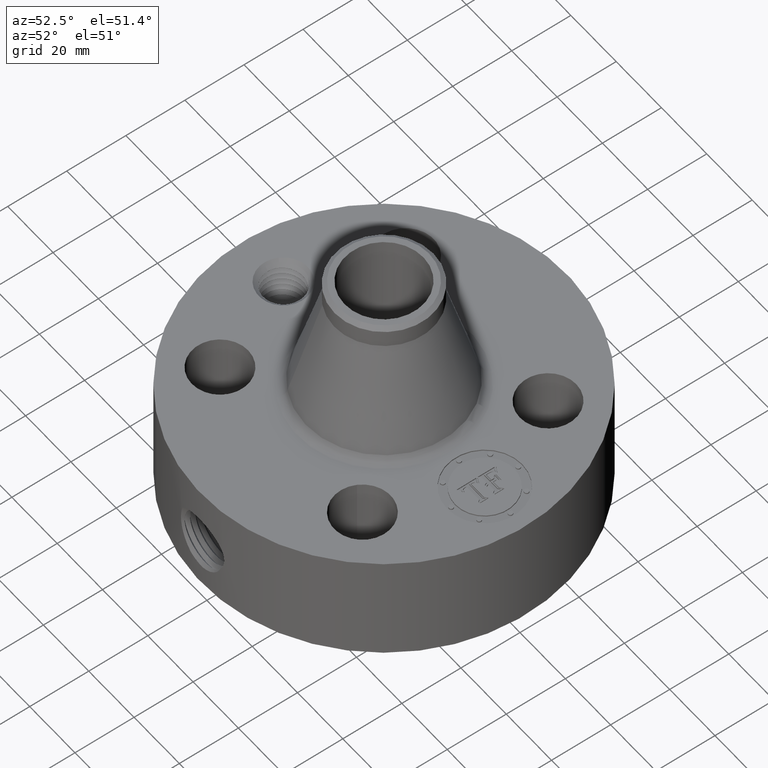
[diagram: clean part render]
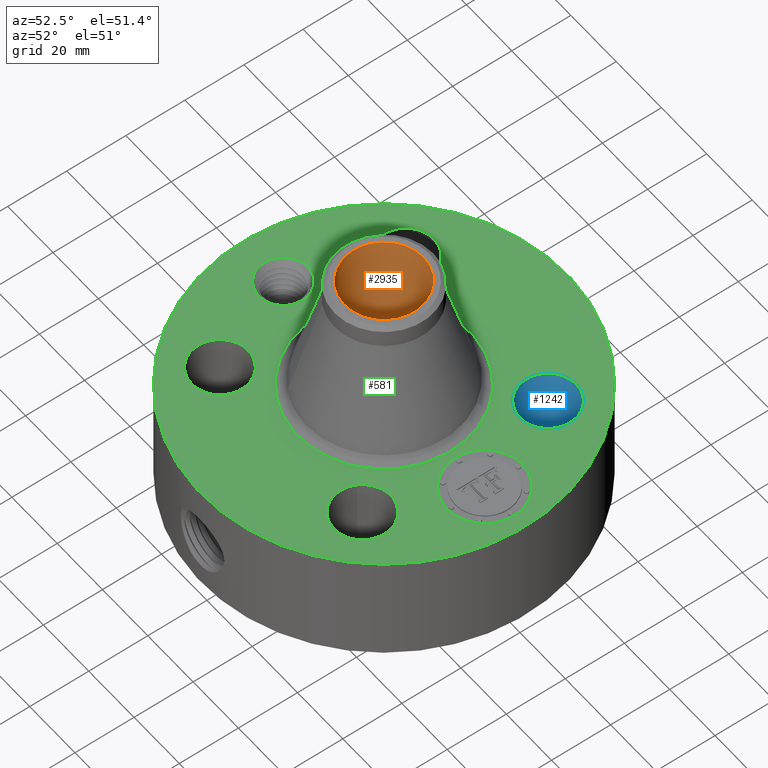
[diagram: same view with three faces highlighted in distinct colors, each labeled with its STEP entity id]
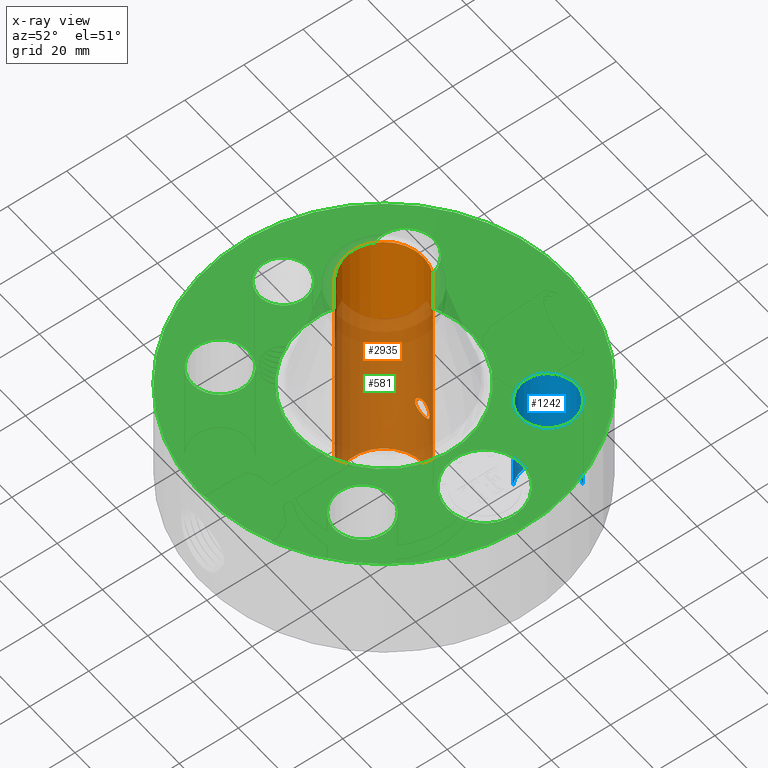
[diagram: x-ray of the same camera — body ghosted, the three highlighted faces saturated]
A machine part, auxiliary view with three faces highlighted in distinct colors.
The next image is the same camera in x-ray (body ghosted, the three faces saturated) — at least one of them is partly hidden behind the body in this view.
Their STEP definitions:

[orange] entity #2935 — the highlighted cylindrical surface (partial cylindrical patch) has radius 13.3223 mm, axis along (0, 0, -1).
#2092=AXIS2_PLACEMENT_3D('Circle Axis2P3D',#2090,#2091,$) ;
#2812=AXIS2_PLACEMENT_3D('Cylinder Axis2P3D',#2809,#2810,#2811) ;
#2884=AXIS2_PLACEMENT_3D('Circle Axis2P3D',#2882,#2883,$) ;
#2085=CARTESIAN_POINT('Vertex',(0.251458694999,0.460292053713,-2.79741234551E-015)) ;
#2087=CARTESIAN_POINT('Vertex',(-0.251458694999,-0.460292053713,-2.79741234551E-015)) ;
#2090=CARTESIAN_POINT('Axis2P3D Location',(0.,0.,0.)) ;
#2809=CARTESIAN_POINT('Axis2P3D Location',(0.,0.,1.75000000001)) ;
#2818=CARTESIAN_POINT('Vertex',(0.251458694999,0.460292053713,3.50000000001)) ;
#2820=CARTESIAN_POINT('Vertex',(-0.251458694999,-0.460292053713,3.50000000001)) ;
#2823=CARTESIAN_POINT('Line Origine',(0.251458694999,0.460292053713,1.75000000001)) ;
#2828=CARTESIAN_POINT('Line Origine',(-0.251458694999,-0.460292053713,1.75000000001)) ;
#2882=CARTESIAN_POINT('Axis2P3D Location',(0.,0.,3.50000000001)) ;
#2894=CARTESIAN_POINT('Control Point',(0.109697820237,0.512900222497,0.99992819233)) ;
#2895=CARTESIAN_POINT('Control Point',(0.103067995137,0.514318192952,1.01206400577)) ;
#2896=CARTESIAN_POINT('Control Point',(0.0947719695394,0.5159805034,1.02326099615)) ;
#2897=CARTESIAN_POINT('Control Point',(0.0849803702631,0.51773919703,1.03323331604)) ;
#2898=CARTESIAN_POINT('Control Point',(0.0538199881037,0.522434964879,1.05721526035)) ;
#2899=CARTESIAN_POINT('Control Point',(0.0149493305901,0.525251537099,1.06806916629)) ;
#2900=CARTESIAN_POINT('Control Point',(-0.0116326804184,0.525346375616,1.06841720931)) ;
#2901=CARTESIAN_POINT('Control Point',(-0.0508447925136,0.522756079785,1.05854858797)) ;
#2902=CARTESIAN_POINT('Control Point',(-0.0826523564103,0.518124437442,1.03531611328)) ;
#2903=CARTESIAN_POINT('Control Point',(-0.0927261783309,0.516359982355,1.02554648395)) ;
#2904=CARTESIAN_POINT('Control Point',(-0.117112916641,0.511563161852,0.994230956015)) ;
#2905=CARTESIAN_POINT('Control Point',(-0.128164416092,0.508593381511,0.954995906299)) ;
#2906=CARTESIAN_POINT('Control Point',(-0.128487390483,0.508500379865,0.928038397611)) ;
#2907=CARTESIAN_POINT('Control Point',(-0.121927405503,0.510284589305,0.902457913349)) ;
#2908=CARTESIAN_POINT('Control Point',(-0.109697820237,0.512900222497,0.880071807678)) ;
#2909=CARTESIAN_POINT('Vertex',(0.109697820237,0.512900222497,0.99992819233)) ;
#2911=CARTESIAN_POINT('Vertex',(-0.109697820237,0.512900222497,0.880071807678)) ;
#2915=CARTESIAN_POINT('Control Point',(0.109697820237,0.512900222497,0.99992819233)) ;
#2916=CARTESIAN_POINT('Control Point',(0.11623428064,0.51150222065,0.987963281817)) ;
#2917=CARTESIAN_POINT('Control Point',(0.121151116862,0.510341730082,0.975085839107)) ;
#2918=CARTESIAN_POINT('Control Point',(0.124277294771,0.509563203993,0.961579940317)) ;
#2919=CARTESIAN_POINT('Control Point',(0.127559697454,0.508761572469,0.92479114426)) ;
#2920=CARTESIAN_POINT('Control Point',(0.117478559259,0.511227660569,0.888670959165)) ;
#2921=CARTESIAN_POINT('Control Point',(0.106063810001,0.513973823365,0.868078037783)) ;
#2922=CARTESIAN_POINT('Control Point',(0.0747703859207,0.520006013883,0.833400530519)) ;
#2923=CARTESIAN_POINT('Control Point',(0.0313370516026,0.524299170456,0.815652108619)) ;
#2924=CARTESIAN_POINT('Control Point',(0.00765580743141,0.52527137436,0.811958680857)) ;
#2925=CARTESIAN_POINT('Control Point',(-0.0355699630458,0.524258134677,0.815523495339)) ;
#2926=CARTESIAN_POINT('Control Point',(-0.0731881901039,0.519775727891,0.835943268941)) ;
#2927=CARTESIAN_POINT('Control Point',(-0.0882205331279,0.517280293423,0.848357746272)) ;
#2928=CARTESIAN_POINT('Control Point',(-0.10054648706,0.51485748681,0.86332040466)) ;
#2929=CARTESIAN_POINT('Control Point',(-0.109697820237,0.512900222497,0.880071807678)) ;
#2091=DIRECTION('Axis2P3D Direction',(0.,0.,-0.0393700787402)) ;
#2810=DIRECTION('Axis2P3D Direction',(0.,0.,-0.0393700787402)) ;
#2811=DIRECTION('Axis2P3D XDirection',(-0.0188750212049,-0.0345504945626,0.)) ;
#2824=DIRECTION('Vector Direction',(0.,0.,-0.0393700787402)) ;
#2829=DIRECTION('Vector Direction',(0.,0.,-0.0393700787402)) ;
#2883=DIRECTION('Axis2P3D Direction',(0.,0.,-0.0393700787402)) ;
#2825=VECTOR('Line Direction',#2824,0.0393700787402) ;
#2830=VECTOR('Line Direction',#2829,0.0393700787402) ;
#2888=ORIENTED_EDGE('',*,*,#2886,.F.) ;
#2889=ORIENTED_EDGE('',*,*,#2832,.T.) ;
#2890=ORIENTED_EDGE('',*,*,#2094,.T.) ;
#2891=ORIENTED_EDGE('',*,*,#2827,.F.) ;
#2932=ORIENTED_EDGE('',*,*,#2913,.F.) ;
#2933=ORIENTED_EDGE('',*,*,#2930,.T.) ;
#2934=FACE_BOUND('',#2931,.T.) ;
#2935=ADVANCED_FACE('PartBody',(#2892,#2934),#2813,.F.) ;
#2893=B_SPLINE_CURVE_WITH_KNOTS('',5,(#2894,#2895,#2896,#2897,#2898,#2899,#2900,#2901,#2902,#2903,#2904,#2905,#2906,#2907,#2908),.UNSPECIFIED.,.F.,.U.,(6,3,3,3,6),(0.,2.49672561363,7.04499234158,9.55164643787,14.1571855461),.UNSPECIFIED.) ;
#2914=B_SPLINE_CURVE_WITH_KNOTS('',5,(#2915,#2916,#2917,#2918,#2919,#2920,#2921,#2922,#2923,#2924,#2925,#2926,#2927,#2928,#2929),.UNSPECIFIED.,.F.,.U.,(6,3,3,3,6),(0.,2.46156540583,6.57020743714,10.7112749778,14.1575752343),.UNSPECIFIED.) ;
#2093=CIRCLE('generated circle',#2092,0.524500000002) ;
#2885=CIRCLE('generated circle',#2884,0.524500000002) ;
#2813=CYLINDRICAL_SURFACE('generated cylinder',#2812,0.524500000002) ;
#2094=EDGE_CURVE('',#2088,#2086,#2093,.T.) ;
#2827=EDGE_CURVE('',#2819,#2086,#2826,.T.) ;
#2832=EDGE_CURVE('',#2821,#2088,#2831,.T.) ;
#2886=EDGE_CURVE('',#2821,#2819,#2885,.T.) ;
#2913=EDGE_CURVE('',#2910,#2912,#2893,.T.) ;
#2930=EDGE_CURVE('',#2910,#2912,#2914,.T.) ;
#2887=EDGE_LOOP('',(#2888,#2889,#2890,#2891)) ;
#2931=EDGE_LOOP('',(#2932,#2933)) ;
#2892=FACE_OUTER_BOUND('',#2887,.T.) ;
#2826=LINE('Line',#2823,#2825) ;
#2831=LINE('Line',#2828,#2830) ;
#2086=VERTEX_POINT('',#2085) ;
#2088=VERTEX_POINT('',#2087) ;
#2819=VERTEX_POINT('',#2818) ;
#2821=VERTEX_POINT('',#2820) ;
#2910=VERTEX_POINT('',#2909) ;
#2912=VERTEX_POINT('',#2911) ;

[blue] entity #1242 — the highlighted cylindrical surface (edge-blend (fillet) strip) has radius 9.525 mm, axis along (0, 0, -1).
#299=AXIS2_PLACEMENT_3D('Circle Axis2P3D',#297,#298,$) ;
#556=AXIS2_PLACEMENT_3D('Circle Axis2P3D',#554,#555,$) ;
#1224=AXIS2_PLACEMENT_3D('Cylinder Axis2P3D',#1221,#1222,#1223) ;
#297=CARTESIAN_POINT('Axis2P3D Location',(1.23743686708,1.23743686708,0.250000000001)) ;
#301=CARTESIAN_POINT('Vertex',(1.0576522901,0.908343406371,0.250000000001)) ;
#303=CARTESIAN_POINT('Vertex',(1.41722144406,1.56653032779,0.250000000001)) ;
#549=CARTESIAN_POINT('Vertex',(1.41722144406,1.56653032779,1.75000000001)) ;
#551=CARTESIAN_POINT('Vertex',(1.0576522901,0.908343406371,1.75000000001)) ;
#554=CARTESIAN_POINT('Axis2P3D Location',(1.23743686708,1.23743686708,1.75000000001)) ;
#1221=CARTESIAN_POINT('Axis2P3D Location',(1.23743686708,1.23743686708,1.74606299213)) ;
#1226=CARTESIAN_POINT('Line Origine',(1.0576522901,0.908343406371,1.)) ;
#1231=CARTESIAN_POINT('Line Origine',(1.41722144406,1.56653032779,1.)) ;
#298=DIRECTION('Axis2P3D Direction',(0.,0.,-0.0393700787402)) ;
#555=DIRECTION('Axis2P3D Direction',(0.,0.,-0.0393700787402)) ;
#1222=DIRECTION('Axis2P3D Direction',(0.,0.,-0.0393700787402)) ;
#1223=DIRECTION('Axis2P3D XDirection',(0.0188750212049,0.0345504945626,0.)) ;
#1227=DIRECTION('Vector Direction',(0.,0.,-0.0393700787402)) ;
#1232=DIRECTION('Vector Direction',(0.,0.,-0.0393700787402)) ;
#1228=VECTOR('Line Direction',#1227,0.0393700787402) ;
#1233=VECTOR('Line Direction',#1232,0.0393700787402) ;
#1237=ORIENTED_EDGE('',*,*,#1230,.F.) ;
#1238=ORIENTED_EDGE('',*,*,#305,.T.) ;
#1239=ORIENTED_EDGE('',*,*,#1235,.T.) ;
#1240=ORIENTED_EDGE('',*,*,#558,.F.) ;
#1242=ADVANCED_FACE('PartBody',(#1241),#1225,.F.) ;
#300=CIRCLE('generated circle',#299,0.375000000001) ;
#557=CIRCLE('generated circle',#556,0.375000000001) ;
#1225=CYLINDRICAL_SURFACE('generated cylinder',#1224,0.375000000001) ;
#305=EDGE_CURVE('',#302,#304,#300,.T.) ;
#558=EDGE_CURVE('',#552,#550,#557,.T.) ;
#1230=EDGE_CURVE('',#302,#552,#1229,.F.) ;
#1235=EDGE_CURVE('',#304,#550,#1234,.F.) ;
#1236=EDGE_LOOP('',(#1237,#1238,#1239,#1240)) ;
#1241=FACE_OUTER_BOUND('',#1236,.T.) ;
#1229=LINE('Line',#1226,#1228) ;
#1234=LINE('Line',#1231,#1233) ;
#302=VERTEX_POINT('',#301) ;
#304=VERTEX_POINT('',#303) ;
#550=VERTEX_POINT('',#549) ;
#552=VERTEX_POINT('',#551) ;

[green] entity #581 — the highlighted planar face has unit normal (0, 0, -1).
#58=AXIS2_PLACEMENT_3D('Circle Axis2P3D',#56,#57,$) ;
#318=AXIS2_PLACEMENT_3D('Circle Axis2P3D',#316,#317,$) ;
#449=AXIS2_PLACEMENT_3D('Plane Axis2P3D',#446,#447,#448) ;
#457=AXIS2_PLACEMENT_3D('Circle Axis2P3D',#455,#456,$) ;
#466=AXIS2_PLACEMENT_3D('Circle Axis2P3D',#464,#465,$) ;
#475=AXIS2_PLACEMENT_3D('Circle Axis2P3D',#473,#474,$) ;
#484=AXIS2_PLACEMENT_3D('Circle Axis2P3D',#482,#483,$) ;
#493=AXIS2_PLACEMENT_3D('Circle Axis2P3D',#491,#492,$) ;
#502=AXIS2_PLACEMENT_3D('Circle Axis2P3D',#500,#501,$) ;
#511=AXIS2_PLACEMENT_3D('Circle Axis2P3D',#509,#510,$) ;
#520=AXIS2_PLACEMENT_3D('Circle Axis2P3D',#518,#519,$) ;
#529=AXIS2_PLACEMENT_3D('Circle Axis2P3D',#527,#528,$) ;
#538=AXIS2_PLACEMENT_3D('Circle Axis2P3D',#536,#537,$) ;
#547=AXIS2_PLACEMENT_3D('Circle Axis2P3D',#545,#546,$) ;
#556=AXIS2_PLACEMENT_3D('Circle Axis2P3D',#554,#555,$) ;
#565=AXIS2_PLACEMENT_3D('Circle Axis2P3D',#563,#564,$) ;
#574=AXIS2_PLACEMENT_3D('Circle Axis2P3D',#572,#573,$) ;
#53=CARTESIAN_POINT('Vertex',(-1.1697983142,-2.14130145102,1.75000000001)) ;
#56=CARTESIAN_POINT('Axis2P3D Location',(0.,0.,1.75000000001)) ;
#60=CARTESIAN_POINT('Vertex',(1.1697983142,2.14130145102,1.75000000001)) ;
#316=CARTESIAN_POINT('Axis2P3D Location',(0.,0.,1.75000000001)) ;
#446=CARTESIAN_POINT('Axis2P3D Location',(0.,2.44000000001,1.75000000001)) ;
#455=CARTESIAN_POINT('Axis2P3D Location',(-1.75000000001,5.59482469102E-016,1.75000000001)) ;
#459=CARTESIAN_POINT('Vertex',(-2.03578476129,0.156124926647,1.75000000001)) ;
#461=CARTESIAN_POINT('Vertex',(-1.46421523873,-0.156124926647,1.75000000001)) ;
#464=CARTESIAN_POINT('Axis2P3D Location',(-1.75000000001,5.59482469102E-016,1.75000000001)) ;
#473=CARTESIAN_POINT('Axis2P3D Location',(1.23743686708,-1.23743686708,1.75000000001)) ;
#477=CARTESIAN_POINT('Vertex',(0.908343406371,-1.0576522901,1.75000000001)) ;
#479=CARTESIAN_POINT('Vertex',(1.56653032779,-1.41722144406,1.75000000001)) ;
#482=CARTESIAN_POINT('Axis2P3D Location',(1.23743686708,-1.23743686708,1.75000000001)) ;
#491=CARTESIAN_POINT('Axis2P3D Location',(0.,0.,1.75000000001)) ;
#495=CARTESIAN_POINT('Vertex',(-0.552161062108,-1.0107240446,1.75000000001)) ;
#497=CARTESIAN_POINT('Vertex',(0.552161062108,1.0107240446,1.75000000001)) ;
#500=CARTESIAN_POINT('Axis2P3D Location',(0.,0.,1.75000000001)) ;
#509=CARTESIAN_POINT('Axis2P3D Location',(-1.23743686708,-1.23743686708,1.75000000001)) ;
#513=CARTESIAN_POINT('Vertex',(-1.41722144406,-1.56653032779,1.75000000001)) ;
#515=CARTESIAN_POINT('Vertex',(-1.0576522901,-0.908343406371,1.75000000001)) ;
#518=CARTESIAN_POINT('Axis2P3D Location',(-1.23743686708,-1.23743686708,1.75000000001)) ;
#527=CARTESIAN_POINT('Axis2P3D Location',(-1.23743686708,1.23743686708,1.75000000001)) ;
#531=CARTESIAN_POINT('Vertex',(-1.56653032779,1.41722144406,1.75000000001)) ;
#533=CARTESIAN_POINT('Vertex',(-0.908343406371,1.0576522901,1.75000000001)) ;
#536=CARTESIAN_POINT('Axis2P3D Location',(-1.23743686708,1.23743686708,1.75000000001)) ;
#545=CARTESIAN_POINT('Axis2P3D Location',(1.23743686708,1.23743686708,1.75000000001)) ;
#549=CARTESIAN_POINT('Vertex',(1.41722144406,1.56653032779,1.75000000001)) ;
#551=CARTESIAN_POINT('Vertex',(1.0576522901,0.908343406371,1.75000000001)) ;
#554=CARTESIAN_POINT('Axis2P3D Location',(1.23743686708,1.23743686708,1.75000000001)) ;
#563=CARTESIAN_POINT('Axis2P3D Location',(1.75000000001,-8.67197827109E-015,1.75000000001)) ;
#567=CARTESIAN_POINT('Vertex',(1.75000000001,0.499999995002,1.75000000001)) ;
#569=CARTESIAN_POINT('Vertex',(1.75000000001,-0.499999995002,1.75000000001)) ;
#572=CARTESIAN_POINT('Axis2P3D Location',(1.75000000001,-8.95171950564E-015,1.75000000001)) ;
#57=DIRECTION('Axis2P3D Direction',(0.,0.,-0.0393700787402)) ;
#317=DIRECTION('Axis2P3D Direction',(0.,0.,-0.0393700787402)) ;
#447=DIRECTION('Axis2P3D Direction',(0.,0.,-0.0393700787402)) ;
#448=DIRECTION('Axis2P3D XDirection',(0.0393700787402,0.,0.)) ;
#456=DIRECTION('Axis2P3D Direction',(0.,0.,-0.0393700787402)) ;
#465=DIRECTION('Axis2P3D Direction',(0.,0.,-0.0393700787402)) ;
#474=DIRECTION('Axis2P3D Direction',(0.,0.,-0.0393700787402)) ;
#483=DIRECTION('Axis2P3D Direction',(0.,0.,-0.0393700787402)) ;
#492=DIRECTION('Axis2P3D Direction',(0.,0.,-0.0393700787402)) ;
#501=DIRECTION('Axis2P3D Direction',(0.,0.,-0.0393700787402)) ;
#510=DIRECTION('Axis2P3D Direction',(0.,0.,-0.0393700787402)) ;
#519=DIRECTION('Axis2P3D Direction',(0.,0.,-0.0393700787402)) ;
#528=DIRECTION('Axis2P3D Direction',(0.,0.,-0.0393700787402)) ;
#537=DIRECTION('Axis2P3D Direction',(0.,0.,-0.0393700787402)) ;
#546=DIRECTION('Axis2P3D Direction',(0.,0.,-0.0393700787402)) ;
#555=DIRECTION('Axis2P3D Direction',(0.,0.,-0.0393700787402)) ;
#564=DIRECTION('Axis2P3D Direction',(0.,0.,-0.0393700787402)) ;
#573=DIRECTION('Axis2P3D Direction',(0.,0.,-0.0393700787402)) ;
#452=ORIENTED_EDGE('',*,*,#320,.F.) ;
#453=ORIENTED_EDGE('',*,*,#62,.F.) ;
#470=ORIENTED_EDGE('',*,*,#463,.T.) ;
#471=ORIENTED_EDGE('',*,*,#468,.T.) ;
#488=ORIENTED_EDGE('',*,*,#481,.T.) ;
#489=ORIENTED_EDGE('',*,*,#486,.T.) ;
#506=ORIENTED_EDGE('',*,*,#499,.T.) ;
#507=ORIENTED_EDGE('',*,*,#504,.T.) ;
#524=ORIENTED_EDGE('',*,*,#517,.T.) ;
#525=ORIENTED_EDGE('',*,*,#522,.T.) ;
#542=ORIENTED_EDGE('',*,*,#535,.T.) ;
#543=ORIENTED_EDGE('',*,*,#540,.T.) ;
#560=ORIENTED_EDGE('',*,*,#553,.T.) ;
#561=ORIENTED_EDGE('',*,*,#558,.T.) ;
#578=ORIENTED_EDGE('',*,*,#571,.T.) ;
#579=ORIENTED_EDGE('',*,*,#576,.T.) ;
#472=FACE_BOUND('',#469,.T.) ;
#490=FACE_BOUND('',#487,.T.) ;
#508=FACE_BOUND('',#505,.T.) ;
#526=FACE_BOUND('',#523,.T.) ;
#544=FACE_BOUND('',#541,.T.) ;
#562=FACE_BOUND('',#559,.T.) ;
#580=FACE_BOUND('',#577,.T.) ;
#581=ADVANCED_FACE('PartBody',(#454,#472,#490,#508,#526,#544,#562,#580),#450,.F.) ;
#59=CIRCLE('generated circle',#58,2.44000000001) ;
#319=CIRCLE('generated circle',#318,2.44000000001) ;
#458=CIRCLE('generated circle',#457,0.325650000001) ;
#467=CIRCLE('generated circle',#466,0.325650000001) ;
#476=CIRCLE('generated circle',#475,0.375000000001) ;
#485=CIRCLE('generated circle',#484,0.375000000001) ;
#494=CIRCLE('generated circle',#493,1.15171391102) ;
#503=CIRCLE('generated circle',#502,1.15171391102) ;
#512=CIRCLE('generated circle',#511,0.375000000002) ;
#521=CIRCLE('generated circle',#520,0.375000000002) ;
#530=CIRCLE('generated circle',#529,0.375000000002) ;
#539=CIRCLE('generated circle',#538,0.375000000002) ;
#548=CIRCLE('generated circle',#547,0.375000000001) ;
#557=CIRCLE('generated circle',#556,0.375000000001) ;
#566=CIRCLE('generated circle',#565,0.499999995002) ;
#575=CIRCLE('generated circle',#574,0.499999995002) ;
#62=EDGE_CURVE('',#54,#61,#59,.T.) ;
#320=EDGE_CURVE('',#61,#54,#319,.T.) ;
#463=EDGE_CURVE('',#460,#462,#458,.T.) ;
#468=EDGE_CURVE('',#462,#460,#467,.T.) ;
#481=EDGE_CURVE('',#478,#480,#476,.T.) ;
#486=EDGE_CURVE('',#480,#478,#485,.T.) ;
#499=EDGE_CURVE('',#496,#498,#494,.T.) ;
#504=EDGE_CURVE('',#498,#496,#503,.T.) ;
#517=EDGE_CURVE('',#514,#516,#512,.T.) ;
#522=EDGE_CURVE('',#516,#514,#521,.T.) ;
#535=EDGE_CURVE('',#532,#534,#530,.T.) ;
#540=EDGE_CURVE('',#534,#532,#539,.T.) ;
#553=EDGE_CURVE('',#550,#552,#548,.T.) ;
#558=EDGE_CURVE('',#552,#550,#557,.T.) ;
#571=EDGE_CURVE('',#568,#570,#566,.T.) ;
#576=EDGE_CURVE('',#570,#568,#575,.T.) ;
#451=EDGE_LOOP('',(#452,#453)) ;
#469=EDGE_LOOP('',(#470,#471)) ;
#487=EDGE_LOOP('',(#488,#489)) ;
#505=EDGE_LOOP('',(#506,#507)) ;
#523=EDGE_LOOP('',(#524,#525)) ;
#541=EDGE_LOOP('',(#542,#543)) ;
#559=EDGE_LOOP('',(#560,#561)) ;
#577=EDGE_LOOP('',(#578,#579)) ;
#454=FACE_OUTER_BOUND('',#451,.T.) ;
#450=PLANE('',#449) ;
#54=VERTEX_POINT('',#53) ;
#61=VERTEX_POINT('',#60) ;
#460=VERTEX_POINT('',#459) ;
#462=VERTEX_POINT('',#461) ;
#478=VERTEX_POINT('',#477) ;
#480=VERTEX_POINT('',#479) ;
#496=VERTEX_POINT('',#495) ;
#498=VERTEX_POINT('',#497) ;
#514=VERTEX_POINT('',#513) ;
#516=VERTEX_POINT('',#515) ;
#532=VERTEX_POINT('',#531) ;
#534=VERTEX_POINT('',#533) ;
#550=VERTEX_POINT('',#549) ;
#552=VERTEX_POINT('',#551) ;
#568=VERTEX_POINT('',#567) ;
#570=VERTEX_POINT('',#569) ;